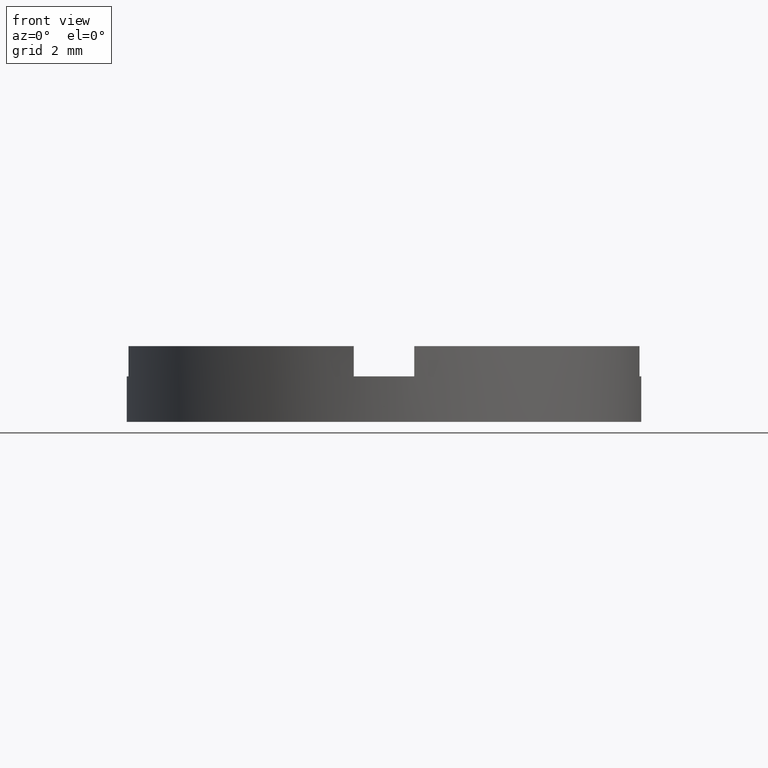
[diagram: clean part render]
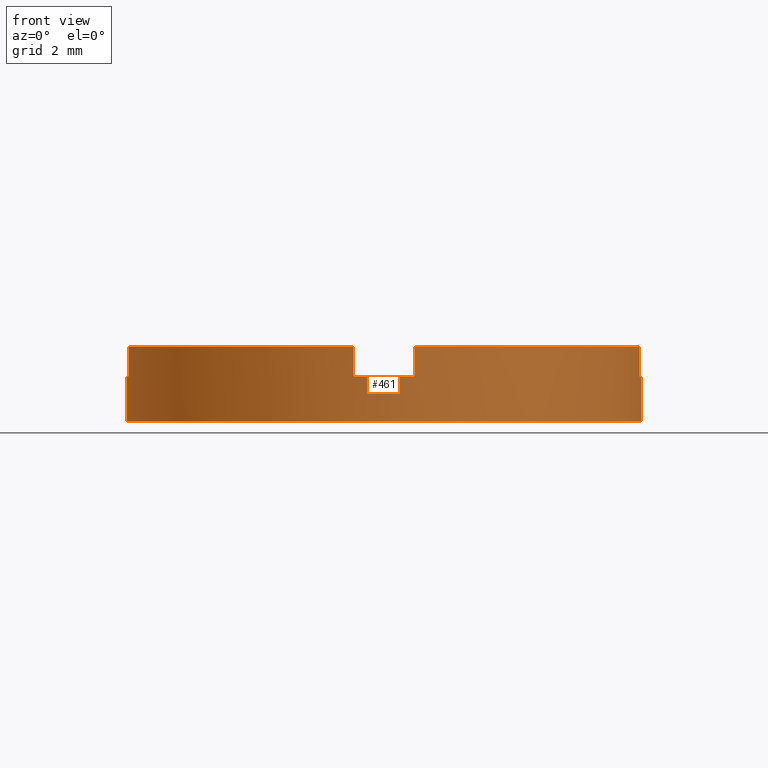
[diagram: same view with one face highlighted and labeled with its STEP entity id]
A machine part, front view. The second image highlights one B-rep face of the part: STEP entity #461.
In plain terms, the highlighted cylindrical surface (partial cylindrical patch) has radius 8.5 mm, axis along (-0, -0, -1).
Its self-contained STEP definition (entity closure, byte-faithful):
#8 = VERTEX_POINT ( 'NONE', #76 ) ;
#9 = LINE ( 'NONE', #83, #497 ) ;
#16 = VERTEX_POINT ( 'NONE', #217 ) ;
#17 = DIRECTION ( 'NONE',  ( 0.000000000000000000, 0.000000000000000000, 1.000000000000000000 ) ) ;
#25 = FACE_OUTER_BOUND ( 'NONE', #667, .T. ) ;
#31 = LINE ( 'NONE', #349, #299 ) ;
#37 = VECTOR ( 'NONE', #564, 1000.000000000000000 ) ;
#44 = LINE ( 'NONE', #125, #329 ) ;
#54 = VECTOR ( 'NONE', #136, 1000.000000000000000 ) ;
#55 = DIRECTION ( 'NONE',  ( -0.000000000000000000, 0.000000000000000000, 1.000000000000000000 ) ) ;
#58 = CIRCLE ( 'NONE', #703, 8.500000000000000000 ) ;
#60 = CARTESIAN_POINT ( 'NONE',  ( 0.000000000000000000, 0.000000000000000000, 1.500000000000000000 ) ) ;
#62 = CIRCLE ( 'NONE', #77, 8.500000000000000000 ) ;
#65 = CIRCLE ( 'NONE', #172, 8.500000000000000000 ) ;
#71 = CARTESIAN_POINT ( 'NONE',  ( 0.000000000000000000, 0.000000000000000000, 2.500000000000000000 ) ) ;
#76 = CARTESIAN_POINT ( 'NONE',  ( -8.500000000000000000, 0.000000000000000000, 0.000000000000000000 ) ) ;
#77 = AXIS2_PLACEMENT_3D ( 'NONE', #300, #55, #103 ) ;
#83 = CARTESIAN_POINT ( 'NONE',  ( -8.500000000000000000, 0.000000000000000000, 2.500000000000000000 ) ) ;
#103 = DIRECTION ( 'NONE',  ( 1.000000000000000000, 0.000000000000000000, 0.000000000000000000 ) ) ;
#110 = VERTEX_POINT ( 'NONE', #114 ) ;
#112 = CARTESIAN_POINT ( 'NONE',  ( 0.000000000000000000, 0.000000000000000000, 1.500000000000000000 ) ) ;
#114 = CARTESIAN_POINT ( 'NONE',  ( 8.440971508067063311, -1.000000000000032641, 1.500000000000000000 ) ) ;
#115 = CARTESIAN_POINT ( 'NONE',  ( 0.000000000000000000, 0.000000000000000000, 2.500000000000000000 ) ) ;
#125 = CARTESIAN_POINT ( 'NONE',  ( -0.9999999999999986677, -8.440971508067066864, 1.500000000000000000 ) ) ;
#127 = VERTEX_POINT ( 'NONE', #416 ) ;
#129 = CARTESIAN_POINT ( 'NONE',  ( -8.500000000000000000, 0.000000000000000000, 1.500000000000000000 ) ) ;
#136 = DIRECTION ( 'NONE',  ( -0.000000000000000000, -0.000000000000000000, 1.000000000000000000 ) ) ;
#150 = ORIENTED_EDGE ( 'NONE', *, *, #173, .F. ) ;
#158 = CARTESIAN_POINT ( 'NONE',  ( 8.500000000000000000, 1.040949779275250140E-15, 0.000000000000000000 ) ) ;
#170 = CARTESIAN_POINT ( 'NONE',  ( -0.9999999999999986677, -8.440971508067066864, 1.500000000000000000 ) ) ;
#172 = AXIS2_PLACEMENT_3D ( 'NONE', #71, #773, #370 ) ;
#173 = EDGE_CURVE ( 'NONE', #110, #226, #304, .T. ) ;
#174 = DIRECTION ( 'NONE',  ( 1.000000000000000000, 0.000000000000000000, 0.000000000000000000 ) ) ;
#176 = ORIENTED_EDGE ( 'NONE', *, *, #605, .F. ) ;
#199 = EDGE_CURVE ( 'NONE', #110, #201, #565, .T. ) ;
#201 = VERTEX_POINT ( 'NONE', #712 ) ;
#215 = DIRECTION ( 'NONE',  ( 1.000000000000000000, 0.000000000000000000, 0.000000000000000000 ) ) ;
#217 = CARTESIAN_POINT ( 'NONE',  ( 1.000000000000001332, -8.440971508067066864, 2.500000000000000000 ) ) ;
#221 = CARTESIAN_POINT ( 'NONE',  ( 0.000000000000000000, 0.000000000000000000, 0.000000000000000000 ) ) ;
#226 = VERTEX_POINT ( 'NONE', #604 ) ;
#232 = DIRECTION ( 'NONE',  ( -0.000000000000000000, -0.000000000000000000, 1.000000000000000000 ) ) ;
#236 = ORIENTED_EDGE ( 'NONE', *, *, #199, .T. ) ;
#246 = DIRECTION ( 'NONE',  ( -1.000000000000000000, 0.000000000000000000, 0.000000000000000000 ) ) ;
#299 = VECTOR ( 'NONE', #487, 1000.000000000000000 ) ;
#300 = CARTESIAN_POINT ( 'NONE',  ( 0.000000000000000000, 0.000000000000000000, 1.500000000000000000 ) ) ;
#304 = CIRCLE ( 'NONE', #439, 8.500000000000000000 ) ;
#310 = CIRCLE ( 'NONE', #588, 8.500000000000000000 ) ;
#315 = DIRECTION ( 'NONE',  ( -0.000000000000000000, -0.000000000000000000, 1.000000000000000000 ) ) ;
#319 = EDGE_CURVE ( 'NONE', #226, #673, #583, .T. ) ;
#329 = VECTOR ( 'NONE', #232, 1000.000000000000000 ) ;
#331 = CIRCLE ( 'NONE', #477, 8.500000000000000000 ) ;
#349 = CARTESIAN_POINT ( 'NONE',  ( -8.440971508067070417, -0.9999999999999696909, 1.500000000000000000 ) ) ;
#350 = EDGE_CURVE ( 'NONE', #718, #127, #44, .T. ) ;
#351 = CARTESIAN_POINT ( 'NONE',  ( -8.440971508067070417, -0.9999999999999696909, 2.500000000000000000 ) ) ;
#359 = DIRECTION ( 'NONE',  ( 1.000000000000000000, 0.000000000000000000, 0.000000000000000000 ) ) ;
#366 = CARTESIAN_POINT ( 'NONE',  ( 8.500000000000000000, 1.040949779275250140E-15, 2.500000000000000000 ) ) ;
#370 = DIRECTION ( 'NONE',  ( 1.000000000000000000, 0.000000000000000000, 0.000000000000000000 ) ) ;
#372 = EDGE_CURVE ( 'NONE', #8, #673, #331, .T. ) ;
#373 = VERTEX_POINT ( 'NONE', #552 ) ;
#377 = VERTEX_POINT ( 'NONE', #129 ) ;
#406 = ORIENTED_EDGE ( 'NONE', *, *, #598, .F. ) ;
#409 = ORIENTED_EDGE ( 'NONE', *, *, #715, .T. ) ;
#416 = CARTESIAN_POINT ( 'NONE',  ( -0.9999999999999986677, -8.440971508067066864, 2.500000000000000000 ) ) ;
#417 = CARTESIAN_POINT ( 'NONE',  ( 1.000000000000001332, -8.440971508067066864, 1.500000000000000000 ) ) ;
#424 = EDGE_CURVE ( 'NONE', #16, #201, #310, .T. ) ;
#432 = CARTESIAN_POINT ( 'NONE',  ( 8.440971508067063311, -1.000000000000032641, 1.500000000000000000 ) ) ;
#439 = AXIS2_PLACEMENT_3D ( 'NONE', #60, #606, #359 ) ;
#449 = EDGE_CURVE ( 'NONE', #502, #16, #585, .T. ) ;
#452 = ORIENTED_EDGE ( 'NONE', *, *, #424, .F. ) ;
#458 = DIRECTION ( 'NONE',  ( -0.000000000000000000, 0.000000000000000000, 1.000000000000000000 ) ) ;
#461 = ADVANCED_FACE ( 'NONE', ( #25 ), #567, .T. ) ;
#472 = ORIENTED_EDGE ( 'NONE', *, *, #319, .F. ) ;
#474 = ORIENTED_EDGE ( 'NONE', *, *, #372, .T. ) ;
#477 = AXIS2_PLACEMENT_3D ( 'NONE', #221, #17, #580 ) ;
#478 = VERTEX_POINT ( 'NONE', #351 ) ;
#484 = EDGE_CURVE ( 'NONE', #373, #478, #31, .T. ) ;
#487 = DIRECTION ( 'NONE',  ( -0.000000000000000000, -0.000000000000000000, 1.000000000000000000 ) ) ;
#497 = VECTOR ( 'NONE', #707, 1000.000000000000000 ) ;
#502 = VERTEX_POINT ( 'NONE', #713 ) ;
#511 = ORIENTED_EDGE ( 'NONE', *, *, #449, .F. ) ;
#531 = ORIENTED_EDGE ( 'NONE', *, *, #350, .T. ) ;
#552 = CARTESIAN_POINT ( 'NONE',  ( -8.440971508067070417, -0.9999999999999696909, 1.500000000000000000 ) ) ;
#564 = DIRECTION ( 'NONE',  ( -0.000000000000000000, -0.000000000000000000, -1.000000000000000000 ) ) ;
#565 = LINE ( 'NONE', #432, #54 ) ;
#567 = CYLINDRICAL_SURFACE ( 'NONE', #676, 8.500000000000000000 ) ;
#580 = DIRECTION ( 'NONE',  ( 1.000000000000000000, 0.000000000000000000, 0.000000000000000000 ) ) ;
#583 = LINE ( 'NONE', #366, #37 ) ;
#585 = LINE ( 'NONE', #417, #592 ) ;
#588 = AXIS2_PLACEMENT_3D ( 'NONE', #115, #706, #174 ) ;
#592 = VECTOR ( 'NONE', #315, 1000.000000000000000 ) ;
#595 = CARTESIAN_POINT ( 'NONE',  ( 0.000000000000000000, 0.000000000000000000, 2.500000000000000000 ) ) ;
#598 = EDGE_CURVE ( 'NONE', #478, #127, #65, .T. ) ;
#604 = CARTESIAN_POINT ( 'NONE',  ( 8.500000000000000000, 1.040949779275250140E-15, 1.500000000000000000 ) ) ;
#605 = EDGE_CURVE ( 'NONE', #718, #502, #62, .T. ) ;
#606 = DIRECTION ( 'NONE',  ( -0.000000000000000000, 0.000000000000000000, 1.000000000000000000 ) ) ;
#633 = DIRECTION ( 'NONE',  ( -0.000000000000000000, -0.000000000000000000, -1.000000000000000000 ) ) ;
#641 = EDGE_CURVE ( 'NONE', #377, #373, #58, .T. ) ;
#667 = EDGE_LOOP ( 'NONE', ( #472, #150, #236, #452, #511, #176, #531, #406, #730, #739, #409, #474 ) ) ;
#673 = VERTEX_POINT ( 'NONE', #158 ) ;
#676 = AXIS2_PLACEMENT_3D ( 'NONE', #595, #633, #246 ) ;
#703 = AXIS2_PLACEMENT_3D ( 'NONE', #112, #458, #215 ) ;
#706 = DIRECTION ( 'NONE',  ( 0.000000000000000000, 0.000000000000000000, 1.000000000000000000 ) ) ;
#707 = DIRECTION ( 'NONE',  ( -0.000000000000000000, -0.000000000000000000, -1.000000000000000000 ) ) ;
#712 = CARTESIAN_POINT ( 'NONE',  ( 8.440971508067063311, -1.000000000000032641, 2.500000000000000000 ) ) ;
#713 = CARTESIAN_POINT ( 'NONE',  ( 1.000000000000001332, -8.440971508067066864, 1.500000000000000000 ) ) ;
#715 = EDGE_CURVE ( 'NONE', #377, #8, #9, .T. ) ;
#718 = VERTEX_POINT ( 'NONE', #170 ) ;
#730 = ORIENTED_EDGE ( 'NONE', *, *, #484, .F. ) ;
#739 = ORIENTED_EDGE ( 'NONE', *, *, #641, .F. ) ;
#773 = DIRECTION ( 'NONE',  ( 0.000000000000000000, 0.000000000000000000, 1.000000000000000000 ) ) ;